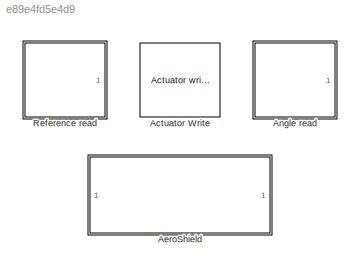
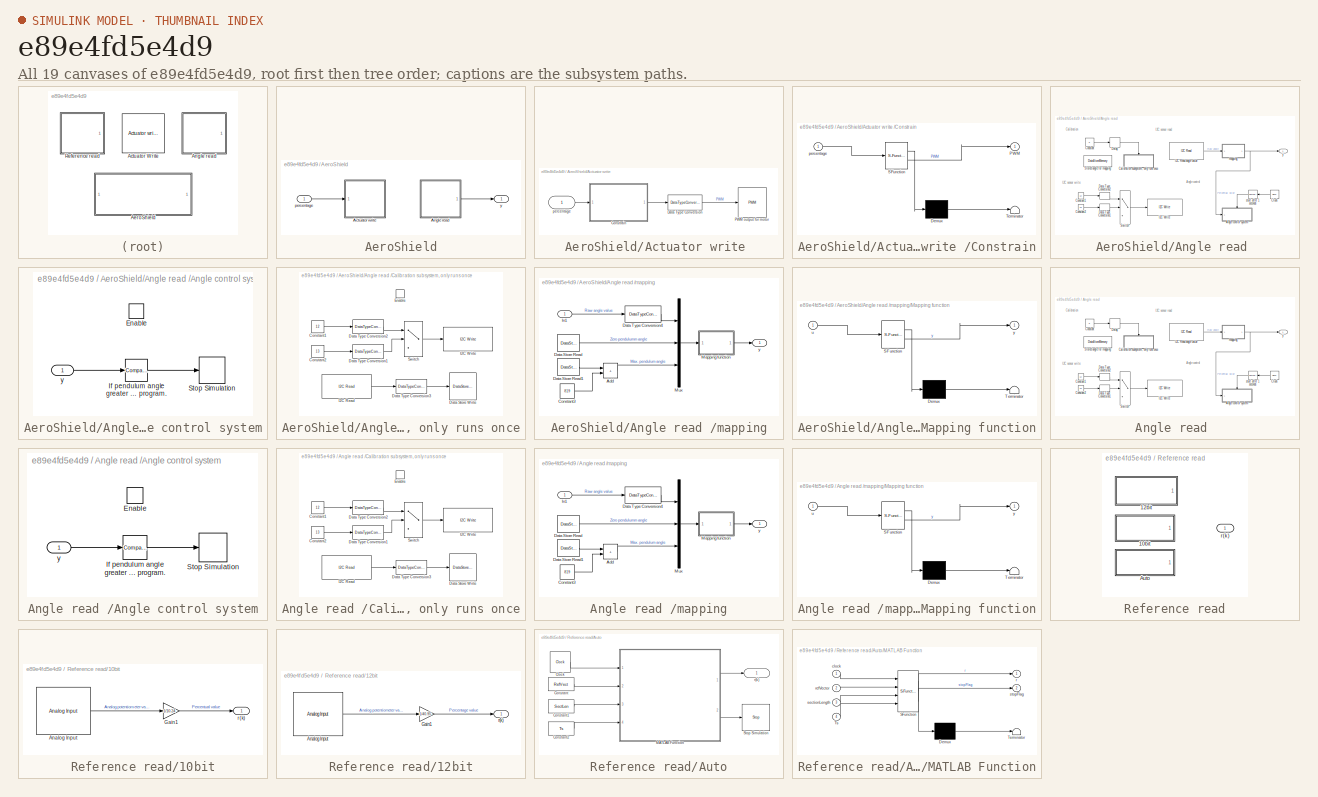
[diagram: thumbnail index - all 19 canvases of the model, root first then tree order]
MODEL slx_e89e4fd5e4d9
KIND library
CONFIG AbsTol = auto
CONFIG EnableMultiTasking = off
CONFIG FixedStep = auto
CONFIG MaxStep = auto
CONFIG MinStep = auto
CONFIG RelTol = 1e-3
CONFIG SampleTimeConstraint = Unconstrained
CONFIG SolverName = VariableStepAuto
CONFIG StartTime = 0.0
CONFIG StopTime = 10.0
BLOCK [Reference] Actuator Write   REF=$bdroot/AeroShield/Actuator write 
  Ports = [1]
  SourceBlock = $bdroot/AeroShield/Actuator write
BLOCK [SubSystem] AeroShield
  Ports = [1, 1]
  RequestExecContextInheritance = off
BLOCK [SubSystem] AeroShield/Actuator write 
  Ports = [1]
  RequestExecContextInheritance = off
BLOCK [SubSystem] AeroShield/Actuator write /Constrain
  ErrorFcn = Stateflow.Translate.translate
  PermitHierarchicalResolution = ExplicitOnly
  Ports = [1, 1]
  RequestExecContextInheritance = off
  SFBlockType = MATLAB Function
  TreatAsAtomicUnit = on
BLOCK [Demux] AeroShield/Actuator write /Constrain/ Demux 
  Outputs = 1
  Ports = [1, 1]
BLOCK [S-Function] AeroShield/Actuator write /Constrain/ SFunction 
  EnableBusSupport = off
  FunctionName = sf_sfun
  PortCounts = [1 2]
  Ports = [1, 2]
  SFcnIsStateOwnerBlock = off
  SFunctionDeploymentMode = off
  Tag = Stateflow S-Function 2
BLOCK [Terminator] AeroShield/Actuator write /Constrain/ Terminator 
BLOCK [Outport] AeroShield/Actuator write /Constrain/PWM
BLOCK [Inport] AeroShield/Actuator write /Constrain/percentage
BLOCK [DataTypeConversion] AeroShield/Actuator write /Data Type Conversion
  RndMeth = Floor
  SaturateOnIntegerOverflow = off
BLOCK [Reference] AeroShield/Actuator write /PWM output for motor   REF=arduinolib/PWM
  Ports = [1]
  SourceBlock = arduinolib/PWM
  SourceProductBaseCode = ARDUINO
  SourceType = Arduino PWM
BLOCK [Inport] AeroShield/Actuator write /percentage
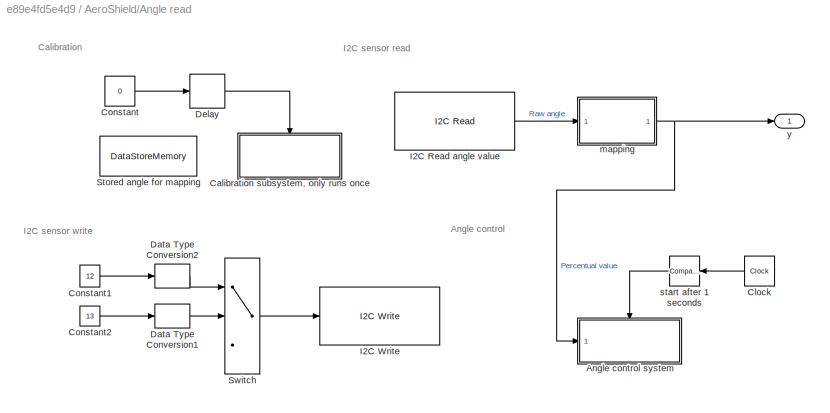
BLOCK [SubSystem] AeroShield/Angle read 
  Ports = [0, 1]
  RequestExecContextInheritance = off
BLOCK [SubSystem] AeroShield/Angle read /Angle control system
  Ports = [1, 0, 1]
  RequestExecContextInheritance = off
  TreatAsAtomicUnit = on
BLOCK [EnablePort] AeroShield/Angle read /Angle control system/Enable
  Ports = []
BLOCK [Reference] AeroShield/Angle read /Angle control system/If pendulum angle greater than 110°, stop the program.  REF=simulink/Logic and Bit
Operations/Compare
To Constant
  Ports = [1, 1]
  SourceBlock = simulink/Logic and Bit\nOperations/Compare\nTo Constant
  SourceProductBaseCode = SL
  SourceType = Compare To Constant
BLOCK [Stop] AeroShield/Angle read /Angle control system/Stop Simulation
BLOCK [Inport] AeroShield/Angle read /Angle control system/y
BLOCK [SubSystem] AeroShield/Angle read /Calibration subsystem, only runs once
  Ports = [0, 0, 1]
  RequestExecContextInheritance = off
  TreatAsAtomicUnit = on
BLOCK [Constant] AeroShield/Angle read /Calibration subsystem, only runs once/Constant1
  Value = 12
BLOCK [Constant] AeroShield/Angle read /Calibration subsystem, only runs once/Constant2
  Value = 13
BLOCK [DataStoreWrite] AeroShield/Angle read /Calibration subsystem, only runs once/Data Store Write
  DataStoreName = StartAngle
  IndexOptions = Index vector (dialog)
  Indices = 1
  OutputSizes = 1
  Ports = [1]
BLOCK [DataTypeConversion] AeroShield/Angle read /Calibration subsystem, only runs once/Data Type Conversion1
  OutDataTypeStr = uint8
  RndMeth = Floor
  SaturateOnIntegerOverflow = off
BLOCK [DataTypeConversion] AeroShield/Angle read /Calibration subsystem, only runs once/Data Type Conversion2
  OutDataTypeStr = uint8
  RndMeth = Floor
  SaturateOnIntegerOverflow = off
BLOCK [DataTypeConversion] AeroShield/Angle read /Calibration subsystem, only runs once/Data Type Conversion3
  RndMeth = Floor
  SaturateOnIntegerOverflow = off
BLOCK [EnablePort] AeroShield/Angle read /Calibration subsystem, only runs once/Enable
  Ports = []
BLOCK [Reference] AeroShield/Angle read /Calibration subsystem, only runs once/I2C Read  REF=arduinolib/I2C Read
  Ports = [0, 1]
  SourceBlock = arduinolib/I2C Read
  SourceProductBaseCode = ARDUINO
  SourceType = I2C Read
BLOCK [Reference] AeroShield/Angle read /Calibration subsystem, only runs once/I2C Write  REF=arduinolib/I2C Write
  Ports = [1]
  SourceBlock = arduinolib/I2C Write
  SourceProductBaseCode = ARDUINO
  SourceType = I2C Write
BLOCK [Switch] AeroShield/Angle read /Calibration subsystem, only runs once/Switch
  Criteria = u2 > Threshold
  InputSameDT = off
  SaturateOnIntegerOverflow = off
BLOCK [Clock] AeroShield/Angle read /Clock
  Decimation = 100
  DisplayTime = on
BLOCK [Constant] AeroShield/Angle read /Constant
  Value = 0
BLOCK [Constant] AeroShield/Angle read /Constant1
  Value = 12
BLOCK [Constant] AeroShield/Angle read /Constant2
  Value = 13
BLOCK [DataTypeConversion] AeroShield/Angle read /Data Type Conversion1
  OutDataTypeStr = uint8
  RndMeth = Floor
  SaturateOnIntegerOverflow = off
BLOCK [DataTypeConversion] AeroShield/Angle read /Data Type Conversion2
  OutDataTypeStr = uint8
  RndMeth = Floor
  SaturateOnIntegerOverflow = off
BLOCK [Delay] AeroShield/Angle read /Delay
  DelayLength = 1
  InitialCondition = 1
  InputPortMap = u0
  Ports = [1, 1]
BLOCK [Reference] AeroShield/Angle read /I2C Read angle value  REF=arduinolib/I2C Read
  Ports = [0, 1]
  SourceBlock = arduinolib/I2C Read
  SourceProductBaseCode = ARDUINO
  SourceType = I2C Read
BLOCK [Reference] AeroShield/Angle read /I2C Write  REF=arduinolib/I2C Write
  Ports = [1]
  SourceBlock = arduinolib/I2C Write
  SourceProductBaseCode = ARDUINO
  SourceType = I2C Write
BLOCK [DataStoreMemory] AeroShield/Angle read /Stored angle for mapping
  DataStoreName = StartAngle
  ReadBeforeWriteMsg = warning
  ShowAdditionalParam = off
  WriteAfterReadMsg = warning
  WriteAfterWriteMsg = warning
BLOCK [Switch] AeroShield/Angle read /Switch
  Criteria = u2 > Threshold
  InputSameDT = off
  SaturateOnIntegerOverflow = off
BLOCK [SubSystem] AeroShield/Angle read /mapping
  Ports = [1, 1]
  RequestExecContextInheritance = off
BLOCK [Sum] AeroShield/Angle read /mapping/Add
  IconShape = rectangular
  Ports = [2, 1]
BLOCK [Constant] AeroShield/Angle read /mapping/Constant3
  Value = 819
BLOCK [DataStoreRead] AeroShield/Angle read /mapping/Data Store Read
  DataStoreName = StartAngle
  IndexOptions = Index vector (dialog)
  Indices = 1
  OutputSizes = 1
  Ports = [0, 1]
BLOCK [DataStoreRead] AeroShield/Angle read /mapping/Data Store Read1
  DataStoreName = StartAngle
  IndexOptions = Index vector (dialog)
  Indices = 1
  OutputSizes = 1
  Ports = [0, 1]
BLOCK [DataTypeConversion] AeroShield/Angle read /mapping/Data Type Conversion4
  RndMeth = Floor
  SaturateOnIntegerOverflow = off
BLOCK [Inport] AeroShield/Angle read /mapping/In1
BLOCK [SubSystem] AeroShield/Angle read /mapping/Mapping function
  ErrorFcn = Stateflow.Translate.translate
  PermitHierarchicalResolution = ExplicitOnly
  Ports = [1, 1]
  RequestExecContextInheritance = off
  SFBlockType = MATLAB Function
  TreatAsAtomicUnit = on
BLOCK [Demux] AeroShield/Angle read /mapping/Mapping function/ Demux 
  Outputs = 1
  Ports = [1, 1]
BLOCK [S-Function] AeroShield/Angle read /mapping/Mapping function/ SFunction 
  EnableBusSupport = off
  FunctionName = sf_sfun
  PortCounts = [1 2]
  Ports = [1, 2]
  SFcnIsStateOwnerBlock = off
  SFunctionDeploymentMode = off
  Tag = Stateflow S-Function 3
BLOCK [Terminator] AeroShield/Angle read /mapping/Mapping function/ Terminator 
BLOCK [Inport] AeroShield/Angle read /mapping/Mapping function/u
BLOCK [Outport] AeroShield/Angle read /mapping/Mapping function/y
BLOCK [Mux] AeroShield/Angle read /mapping/Mux
  DisplayOption = bar
  Inputs = 3
  Ports = [3, 1]
BLOCK [Outport] AeroShield/Angle read /mapping/y
BLOCK [Reference] AeroShield/Angle read /start after 1 seconds  REF=simulink/Logic and Bit
Operations/Compare
To Constant
  Ports = [1, 1]
  SourceBlock = simulink/Logic and Bit\nOperations/Compare\nTo Constant
  SourceProductBaseCode = SL
  SourceType = Compare To Constant
BLOCK [Outport] AeroShield/Angle read /y
BLOCK [Inport] AeroShield/percentage
BLOCK [Outport] AeroShield/y
BLOCK [SubSystem] Angle read 
  Ports = [0, 1]
  RequestExecContextInheritance = off
BLOCK [SubSystem] Angle read /Angle control system
  Ports = [1, 0, 1]
  RequestExecContextInheritance = off
  TreatAsAtomicUnit = on
BLOCK [EnablePort] Angle read /Angle control system/Enable
  Ports = []
BLOCK [Reference] Angle read /Angle control system/If pendulum angle greater than 110°, stop the program.  REF=simulink/Logic and Bit
Operations/Compare
To Constant
  Ports = [1, 1]
  SourceBlock = simulink/Logic and Bit\nOperations/Compare\nTo Constant
  SourceProductBaseCode = SL
  SourceType = Compare To Constant
BLOCK [Stop] Angle read /Angle control system/Stop Simulation
BLOCK [Inport] Angle read /Angle control system/y
BLOCK [SubSystem] Angle read /Calibration subsystem, only runs once
  Ports = [0, 0, 1]
  RequestExecContextInheritance = off
  TreatAsAtomicUnit = on
BLOCK [Constant] Angle read /Calibration subsystem, only runs once/Constant1
  Value = 12
BLOCK [Constant] Angle read /Calibration subsystem, only runs once/Constant2
  Value = 13
BLOCK [DataStoreWrite] Angle read /Calibration subsystem, only runs once/Data Store Write
  DataStoreName = StartAngle
  IndexOptions = Index vector (dialog)
  Indices = 1
  OutputSizes = 1
  Ports = [1]
BLOCK [DataTypeConversion] Angle read /Calibration subsystem, only runs once/Data Type Conversion1
  OutDataTypeStr = uint8
  RndMeth = Floor
  SaturateOnIntegerOverflow = off
BLOCK [DataTypeConversion] Angle read /Calibration subsystem, only runs once/Data Type Conversion2
  OutDataTypeStr = uint8
  RndMeth = Floor
  SaturateOnIntegerOverflow = off
BLOCK [DataTypeConversion] Angle read /Calibration subsystem, only runs once/Data Type Conversion3
  RndMeth = Floor
  SaturateOnIntegerOverflow = off
BLOCK [EnablePort] Angle read /Calibration subsystem, only runs once/Enable
  Ports = []
BLOCK [Reference] Angle read /Calibration subsystem, only runs once/I2C Read  REF=arduinolib/I2C Read
  Ports = [0, 1]
  SourceBlock = arduinolib/I2C Read
  SourceProductBaseCode = ARDUINO
  SourceType = I2C Read
BLOCK [Reference] Angle read /Calibration subsystem, only runs once/I2C Write  REF=arduinolib/I2C Write
  Ports = [1]
  SourceBlock = arduinolib/I2C Write
  SourceProductBaseCode = ARDUINO
  SourceType = I2C Write
BLOCK [Switch] Angle read /Calibration subsystem, only runs once/Switch
  Criteria = u2 > Threshold
  InputSameDT = off
  SaturateOnIntegerOverflow = off
BLOCK [Clock] Angle read /Clock
  Decimation = 100
  DisplayTime = on
BLOCK [Constant] Angle read /Constant
  Value = 0
BLOCK [Constant] Angle read /Constant1
  Value = 12
BLOCK [Constant] Angle read /Constant2
  Value = 13
BLOCK [DataTypeConversion] Angle read /Data Type Conversion1
  OutDataTypeStr = uint8
  RndMeth = Floor
  SaturateOnIntegerOverflow = off
BLOCK [DataTypeConversion] Angle read /Data Type Conversion2
  OutDataTypeStr = uint8
  RndMeth = Floor
  SaturateOnIntegerOverflow = off
BLOCK [Delay] Angle read /Delay
  DelayLength = 1
  InitialCondition = 1
  InputPortMap = u0
  Ports = [1, 1]
BLOCK [Reference] Angle read /I2C Read angle value  REF=arduinolib/I2C Read
  Ports = [0, 1]
  SourceBlock = arduinolib/I2C Read
  SourceProductBaseCode = ARDUINO
  SourceType = I2C Read
BLOCK [Reference] Angle read /I2C Write  REF=arduinolib/I2C Write
  Ports = [1]
  SourceBlock = arduinolib/I2C Write
  SourceProductBaseCode = ARDUINO
  SourceType = I2C Write
BLOCK [DataStoreMemory] Angle read /Stored angle for mapping
  DataStoreName = StartAngle
  ReadBeforeWriteMsg = warning
  ShowAdditionalParam = off
  WriteAfterReadMsg = warning
  WriteAfterWriteMsg = warning
BLOCK [Switch] Angle read /Switch
  Criteria = u2 > Threshold
  InputSameDT = off
  SaturateOnIntegerOverflow = off
BLOCK [SubSystem] Angle read /mapping
  Ports = [1, 1]
  RequestExecContextInheritance = off
BLOCK [Sum] Angle read /mapping/Add
  IconShape = rectangular
  Ports = [2, 1]
BLOCK [Constant] Angle read /mapping/Constant3
  Value = 819
BLOCK [DataStoreRead] Angle read /mapping/Data Store Read
  DataStoreName = StartAngle
  IndexOptions = Index vector (dialog)
  Indices = 1
  OutputSizes = 1
  Ports = [0, 1]
BLOCK [DataStoreRead] Angle read /mapping/Data Store Read1
  DataStoreName = StartAngle
  IndexOptions = Index vector (dialog)
  Indices = 1
  OutputSizes = 1
  Ports = [0, 1]
BLOCK [DataTypeConversion] Angle read /mapping/Data Type Conversion4
  RndMeth = Floor
  SaturateOnIntegerOverflow = off
BLOCK [Inport] Angle read /mapping/In1
BLOCK [SubSystem] Angle read /mapping/Mapping function
  ErrorFcn = Stateflow.Translate.translate
  PermitHierarchicalResolution = ExplicitOnly
  Ports = [1, 1]
  RequestExecContextInheritance = off
  SFBlockType = MATLAB Function
  TreatAsAtomicUnit = on
BLOCK [Demux] Angle read /mapping/Mapping function/ Demux 
  Outputs = 1
  Ports = [1, 1]
BLOCK [S-Function] Angle read /mapping/Mapping function/ SFunction 
  EnableBusSupport = off
  FunctionName = sf_sfun
  PortCounts = [1 2]
  Ports = [1, 2]
  SFcnIsStateOwnerBlock = off
  SFunctionDeploymentMode = off
  Tag = Stateflow S-Function 1
BLOCK [Terminator] Angle read /mapping/Mapping function/ Terminator 
BLOCK [Inport] Angle read /mapping/Mapping function/u
BLOCK [Outport] Angle read /mapping/Mapping function/y
BLOCK [Mux] Angle read /mapping/Mux
  DisplayOption = bar
  Inputs = 3
  Ports = [3, 1]
BLOCK [Outport] Angle read /mapping/y
BLOCK [Reference] Angle read /start after 1 seconds  REF=simulink/Logic and Bit
Operations/Compare
To Constant
  Ports = [1, 1]
  SourceBlock = simulink/Logic and Bit\nOperations/Compare\nTo Constant
  SourceProductBaseCode = SL
  SourceType = Compare To Constant
BLOCK [Outport] Angle read /y
BLOCK [SubSystem] Reference read
  LabelModeActiveChoice = Auto
  Ports = [0, 1]
  RequestExecContextInheritance = off
  Variant = on
  VariantControlMode = label
BLOCK [SubSystem] Reference read/10bit
  Ports = [0, 1]
  RequestExecContextInheritance = off
  VariantControl = 10bit
BLOCK [Reference] Reference read/10bit/Analog Input  REF=arduinolib/Analog Input
  Ports = [0, 1]
  SourceBlock = arduinolib/Analog Input
  SourceProductBaseCode = ARDUINO
  SourceType = Arduino Analog Input
BLOCK [Gain] Reference read/10bit/Gain1
  Gain = 1/10.24
BLOCK [Outport] Reference read/10bit/r(k)
BLOCK [SubSystem] Reference read/12bit
  Ports = [0, 1]
  RequestExecContextInheritance = off
  VariantControl = 12bit
BLOCK [Reference] Reference read/12bit/Analog Input  REF=arduinolib/Analog Input
  Ports = [0, 1]
  SourceBlock = arduinolib/Analog Input
  SourceProductBaseCode = ARDUINO
  SourceType = Arduino Analog Input
BLOCK [Gain] Reference read/12bit/Gain1
  Gain = 1/40.95
BLOCK [Outport] Reference read/12bit/r(k)
BLOCK [SubSystem] Reference read/Auto
  Ports = [0, 1]
  RequestExecContextInheritance = off
  VariantControl = Auto
BLOCK [Clock] Reference read/Auto/Clock
BLOCK [Constant] Reference read/Auto/Constant
  SampleTime = Ts
  Value = RefVect
BLOCK [Constant] Reference read/Auto/Constant1
  SampleTime = Ts
  Value = SectLen
BLOCK [Constant] Reference read/Auto/Constant2
  SampleTime = Ts
  Value = Ts
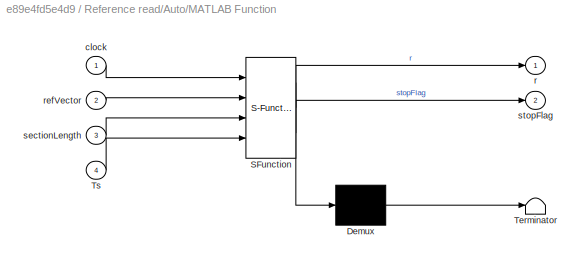
BLOCK [SubSystem] Reference read/Auto/MATLAB Function
  ErrorFcn = Stateflow.Translate.translate
  PermitHierarchicalResolution = ExplicitOnly
  Ports = [4, 2]
  RequestExecContextInheritance = off
  SFBlockType = MATLAB Function
  TreatAsAtomicUnit = on
BLOCK [Demux] Reference read/Auto/MATLAB Function/ Demux 
  Outputs = 1
  Ports = [1, 1]
BLOCK [S-Function] Reference read/Auto/MATLAB Function/ SFunction 
  EnableBusSupport = off
  FunctionName = sf_sfun
  PortCounts = [4 3]
  Ports = [4, 3]
  SFcnIsStateOwnerBlock = off
  SFunctionDeploymentMode = off
  Tag = Stateflow S-Function 4
BLOCK [Terminator] Reference read/Auto/MATLAB Function/ Terminator 
BLOCK [Inport] Reference read/Auto/MATLAB Function/Ts
  Port = 4
BLOCK [Inport] Reference read/Auto/MATLAB Function/clock
BLOCK [Outport] Reference read/Auto/MATLAB Function/r
BLOCK [Inport] Reference read/Auto/MATLAB Function/refVector
  Port = 2
BLOCK [Inport] Reference read/Auto/MATLAB Function/sectionLength
  Port = 3
BLOCK [Outport] Reference read/Auto/MATLAB Function/stopFlag
  Port = 2
BLOCK [Stop] Reference read/Auto/Stop Simulation
BLOCK [Outport] Reference read/Auto/r(k)
BLOCK [Outport] Reference read/r(k)
ANNOTATION AeroShield/Angle read : Angle control
ANNOTATION AeroShield/Angle read : Calibration
ANNOTATION AeroShield/Angle read : I2C sensor read
ANNOTATION AeroShield/Angle read : I2C sensor write
ANNOTATION Angle read : Angle control
ANNOTATION Angle read : Calibration
ANNOTATION Angle read : I2C sensor read
ANNOTATION Angle read : I2C sensor write
LINE AeroShield/Actuator write /Constrain:1 -> AeroShield/Actuator write /Data Type Conversion:1
LINE AeroShield/Actuator write /Data Type Conversion:1 -> AeroShield/Actuator write /PWM output for motor :1
LINE AeroShield/Actuator write /percentage:1 -> AeroShield/Actuator write /Constrain:1
LINE AeroShield/Angle read /Angle control system/If pendulum angle greater than 110°, stop the program.:1 -> AeroShield/Angle read /Angle control system/Stop Simulation:1
LINE AeroShield/Angle read /Angle control system/y:1 -> AeroShield/Angle read /Angle control system/If pendulum angle greater than 110°, stop the program.:1
LINE AeroShield/Angle read /Calibration subsystem, only runs once/Constant1:1 -> AeroShield/Angle read /Calibration subsystem, only runs once/Data Type Conversion2:1
LINE AeroShield/Angle read /Calibration subsystem, only runs once/Constant2:1 -> AeroShield/Angle read /Calibration subsystem, only runs once/Data Type Conversion1:1
LINE AeroShield/Angle read /Calibration subsystem, only runs once/Data Type Conversion1:1 -> AeroShield/Angle read /Calibration subsystem, only runs once/Switch:2
LINE AeroShield/Angle read /Calibration subsystem, only runs once/Data Type Conversion2:1 -> AeroShield/Angle read /Calibration subsystem, only runs once/Switch:1
LINE AeroShield/Angle read /Calibration subsystem, only runs once/Data Type Conversion3:1 -> AeroShield/Angle read /Calibration subsystem, only runs once/Data Store Write:1
LINE AeroShield/Angle read /Calibration subsystem, only runs once/I2C Read:1 -> AeroShield/Angle read /Calibration subsystem, only runs once/Data Type Conversion3:1
LINE AeroShield/Angle read /Calibration subsystem, only runs once/Switch:1 -> AeroShield/Angle read /Calibration subsystem, only runs once/I2C Write:1
LINE AeroShield/Angle read /Clock:1 -> AeroShield/Angle read /start after 1 seconds:1
LINE AeroShield/Angle read /Constant1:1 -> AeroShield/Angle read /Data Type Conversion2:1
LINE AeroShield/Angle read /Constant2:1 -> AeroShield/Angle read /Data Type Conversion1:1
LINE AeroShield/Angle read /Constant:1 -> AeroShield/Angle read /Delay:1
LINE AeroShield/Angle read /Data Type Conversion1:1 -> AeroShield/Angle read /Switch:2
LINE AeroShield/Angle read /Data Type Conversion2:1 -> AeroShield/Angle read /Switch:1
LINE AeroShield/Angle read /Delay:1 -> AeroShield/Angle read /Calibration subsystem, only runs once:enable
LINE AeroShield/Angle read /I2C Read angle value:1 -> AeroShield/Angle read /mapping:1
LINE AeroShield/Angle read /Switch:1 -> AeroShield/Angle read /I2C Write:1
LINE AeroShield/Angle read /mapping/Add:1 -> AeroShield/Angle read /mapping/Mux:3
LINE AeroShield/Angle read /mapping/Constant3:1 -> AeroShield/Angle read /mapping/Add:2
LINE AeroShield/Angle read /mapping/Data Store Read1:1 -> AeroShield/Angle read /mapping/Add:1
LINE AeroShield/Angle read /mapping/Data Store Read:1 -> AeroShield/Angle read /mapping/Mux:2
LINE AeroShield/Angle read /mapping/Data Type Conversion4:1 -> AeroShield/Angle read /mapping/Mux:1
LINE AeroShield/Angle read /mapping/In1:1 -> AeroShield/Angle read /mapping/Data Type Conversion4:1
LINE AeroShield/Angle read /mapping/Mapping function:1 -> AeroShield/Angle read /mapping/y:1
LINE AeroShield/Angle read /mapping/Mux:1 -> AeroShield/Angle read /mapping/Mapping function:1
NET AeroShield/Angle read /mapping:1 -> AeroShield/Angle read /Angle control system:1, AeroShield/Angle read /y:1
LINE AeroShield/Angle read /start after 1 seconds:1 -> AeroShield/Angle read /Angle control system:enable
LINE AeroShield/Angle read :1 -> AeroShield/y:1
LINE AeroShield/percentage:1 -> AeroShield/Actuator write :1
LINE Angle read /Angle control system/If pendulum angle greater than 110°, stop the program.:1 -> Angle read /Angle control system/Stop Simulation:1
LINE Angle read /Angle control system/y:1 -> Angle read /Angle control system/If pendulum angle greater than 110°, stop the program.:1
LINE Angle read /Calibration subsystem, only runs once/Constant1:1 -> Angle read /Calibration subsystem, only runs once/Data Type Conversion2:1
LINE Angle read /Calibration subsystem, only runs once/Constant2:1 -> Angle read /Calibration subsystem, only runs once/Data Type Conversion1:1
LINE Angle read /Calibration subsystem, only runs once/Data Type Conversion1:1 -> Angle read /Calibration subsystem, only runs once/Switch:2
LINE Angle read /Calibration subsystem, only runs once/Data Type Conversion2:1 -> Angle read /Calibration subsystem, only runs once/Switch:1
LINE Angle read /Calibration subsystem, only runs once/Data Type Conversion3:1 -> Angle read /Calibration subsystem, only runs once/Data Store Write:1
LINE Angle read /Calibration subsystem, only runs once/I2C Read:1 -> Angle read /Calibration subsystem, only runs once/Data Type Conversion3:1
LINE Angle read /Calibration subsystem, only runs once/Switch:1 -> Angle read /Calibration subsystem, only runs once/I2C Write:1
LINE Angle read /Clock:1 -> Angle read /start after 1 seconds:1
LINE Angle read /Constant1:1 -> Angle read /Data Type Conversion2:1
LINE Angle read /Constant2:1 -> Angle read /Data Type Conversion1:1
LINE Angle read /Constant:1 -> Angle read /Delay:1
LINE Angle read /Data Type Conversion1:1 -> Angle read /Switch:2
LINE Angle read /Data Type Conversion2:1 -> Angle read /Switch:1
LINE Angle read /Delay:1 -> Angle read /Calibration subsystem, only runs once:enable
LINE Angle read /I2C Read angle value:1 -> Angle read /mapping:1
LINE Angle read /Switch:1 -> Angle read /I2C Write:1
LINE Angle read /mapping/Add:1 -> Angle read /mapping/Mux:3
LINE Angle read /mapping/Constant3:1 -> Angle read /mapping/Add:2
LINE Angle read /mapping/Data Store Read1:1 -> Angle read /mapping/Add:1
LINE Angle read /mapping/Data Store Read:1 -> Angle read /mapping/Mux:2
LINE Angle read /mapping/Data Type Conversion4:1 -> Angle read /mapping/Mux:1
LINE Angle read /mapping/In1:1 -> Angle read /mapping/Data Type Conversion4:1
LINE Angle read /mapping/Mapping function:1 -> Angle read /mapping/y:1
LINE Angle read /mapping/Mux:1 -> Angle read /mapping/Mapping function:1
NET Angle read /mapping:1 -> Angle read /Angle control system:1, Angle read /y:1
LINE Angle read /start after 1 seconds:1 -> Angle read /Angle control system:enable
LINE Reference read/10bit/Analog Input:1 -> Reference read/10bit/Gain1:1
LINE Reference read/10bit/Gain1:1 -> Reference read/10bit/r(k):1
LINE Reference read/12bit/Analog Input:1 -> Reference read/12bit/Gain1:1
LINE Reference read/12bit/Gain1:1 -> Reference read/12bit/r(k):1
LINE Reference read/Auto/Clock:1 -> Reference read/Auto/MATLAB Function:1
LINE Reference read/Auto/Constant1:1 -> Reference read/Auto/MATLAB Function:3
LINE Reference read/Auto/Constant2:1 -> Reference read/Auto/MATLAB Function:4
LINE Reference read/Auto/Constant:1 -> Reference read/Auto/MATLAB Function:2
LINE Reference read/Auto/MATLAB Function:1 -> Reference read/Auto/r(k):1
LINE Reference read/Auto/MATLAB Function:2 -> Reference read/Auto/Stop Simulation:1
note: NET lines group one-source signal fan-out (src -> all destinations, sorted); 1:1 wires keep LINE
CHART Angle read /mapping/Mapping function states=1 transitions=1
  STATE_LABEL 'eML_blk_kernel()'
  STATE_LABEL 'SCRIPT:\nfunction y = fcn(u)\nangMin=0;\nangMax=72;\ny = ((u(1) - u(2)) * (angMax - angMin)) / (u(3) - u(2)) + angMin ;\n'
CHART AeroShield/Actuator write /Constrain states=1 transitions=1
  STATE_LABEL 'eML_blk_kernel()'
  STATE_LABEL 'SCRIPT:\nfunction PWM = fcn(percentage)\n\nPWM = constrain((percentage * 2.55), 0, 255);\n\nend'
CHART AeroShield/Angle read /mapping/Mapping function states=1 transitions=1
  STATE_LABEL 'eML_blk_kernel()'
  STATE_LABEL 'SCRIPT:\nfunction y = fcn(u)\nangMin=0;\nangMax=72;\ny = ((u(1) - u(2)) * (angMax - angMin)) / (u(3) - u(2)) + angMin ;\n'
CHART Reference read/Auto/MATLAB Function states=1 transitions=1
  STATE_LABEL 'eML_blk_kernel()'
  STATE_LABEL 'SCRIPT:\nfunction [r, stopFlag] = fcn(clock, refVector, sectionLength, Ts)\n\npersistent counter;\n\npauseTime = 2;\n\nif isempty(counter)\n    counter = 1;\nend\n\nif clock > pauseTime\n    RefLength = length(refVector);\n    SectionDuration = sectionLength * Ts;\n    if (clock - pauseTime) <= (SectionDuration * counter)\n        r = refVector(counter);\n        stopFlag = 0;\n    else\n        counter = counter +...<+250ch>'
CHART  states=0 transitions=0
CHART  states=0 transitions=0
CHART  states=0 transitions=0
CHART  states=0 transitions=0
